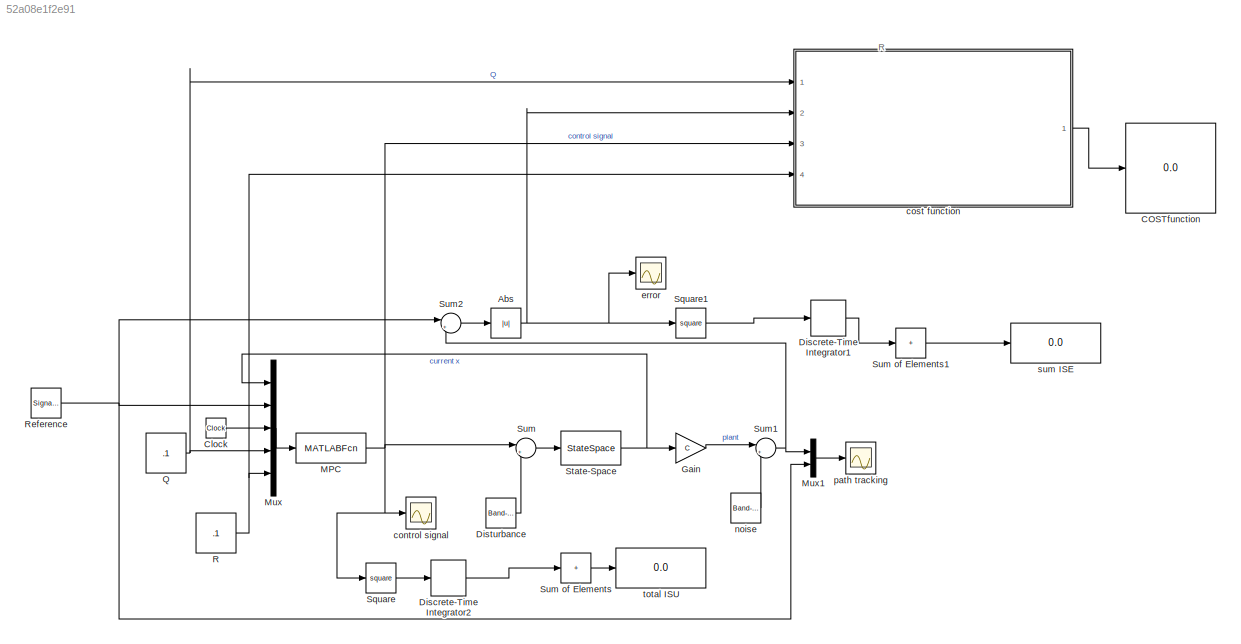
MODEL slx_52a08e1f2e91
KIND model
CONFIG AbsTol = auto
CONFIG EnableMultiTasking = on
CONFIG FixedStep = auto
CONFIG MaxStep = auto
CONFIG MinStep = auto
CONFIG RelTol = 1e-3
CONFIG SampleTimeConstraint = Unconstrained
CONFIG SolverName = ode45
CONFIG StartTime = 0.0
CONFIG StopTime = 10
BLOCK [Abs] Abs
  SaturateOnIntegerOverflow = off
BLOCK [Display] COSTfunction
  Decimation = 1
  Ports = [1]
BLOCK [Clock] Clock
BLOCK [DiscreteIntegrator] Discrete-Time Integrator1
  ICPrevOutput = DiscIntNeverNeededParam
  ICPrevScaledInput = DiscIntNeverNeededParam
  InitialConditionSetting = Auto
  Ports = [1, 1]
  SampleTime = -1
BLOCK [DiscreteIntegrator] Discrete-Time Integrator2
  ICPrevOutput = DiscIntNeverNeededParam
  ICPrevScaledInput = DiscIntNeverNeededParam
  InitialConditionSetting = Auto
  Ports = [1, 1]
  SampleTime = -1
BLOCK [Reference] Disturbance  REF=simulink/Sources/Band-Limited
White Noise
  Ports = [0, 1]
  SourceBlock = simulink/Sources/Band-Limited\nWhite Noise
  SourceProductBaseCode = SL
  SourceType = Band-Limited White Noise.
BLOCK [Gain] Gain
  Gain = C
  Multiplication = Matrix(K*u)
BLOCK [MATLABFcn] MPC
  Description = MPC controller
  MATLABFcn = ac3mpccontroller(u(1:5),u(6),u(7),u(8),u(9))
  Ports = [1, 1]
  SampleTime = Ts
BLOCK [Mux] Mux
  DisplayOption = bar
  Inputs = 5
  Ports = [5, 1]
BLOCK [Mux] Mux1
  DisplayOption = bar
  Inputs = 2
  Ports = [2, 1]
BLOCK [Constant] Q
  SampleTime = -1
  Value = .1
BLOCK [Constant] R
  SampleTime = -1
  Value = .1
BLOCK [SignalGenerator] Reference
  Frequency = .2
  Ports = [0, 1]
  WaveForm = square
BLOCK [Math] Square
  Operator = square
  Ports = [1, 1]
BLOCK [Math] Square1
  Operator = square
  Ports = [1, 1]
BLOCK [StateSpace] State-Space
  A = A
  B = B
  C = eye(nx)
  D = zeros(nx,nu)
  InitialCondition = x0
  Ports = [1, 1]
BLOCK [Sum] Sum
  Inputs = |++
  Ports = [2, 1]
BLOCK [Sum] Sum of Elements
  IconShape = rectangular
  Inputs = +
  Ports = [1, 1]
BLOCK [Sum] Sum of Elements1
  IconShape = rectangular
  Inputs = +
  Ports = [1, 1]
BLOCK [Sum] Sum1
  Inputs = |++
  Ports = [2, 1]
BLOCK [Sum] Sum2
  Inputs = |+-
  Ports = [2, 1]
BLOCK [Scope] control signal
  Floating = off
  NumInputPorts = 1
  Ports = [1]
  ScopeSpecificationString = Simulink.scopes.TimeScopeBlockCfg('CurrentConfiguration', extmgr.ConfigurationSet(extmgr.Configuration('Core','General UI',true),extmgr.Configuration('Core','Source UI',true),extmgr.Configuration('Sources','WiredSimulink',true,'DataLoggingVariableName','ScopeData1','DataLoggingSaveFormat','StructureWithTime','DataLoggingLimitDataPoints',true,'DataLoggingDecimation','1','DataLoggingDecimateData',tr...<+1693ch>
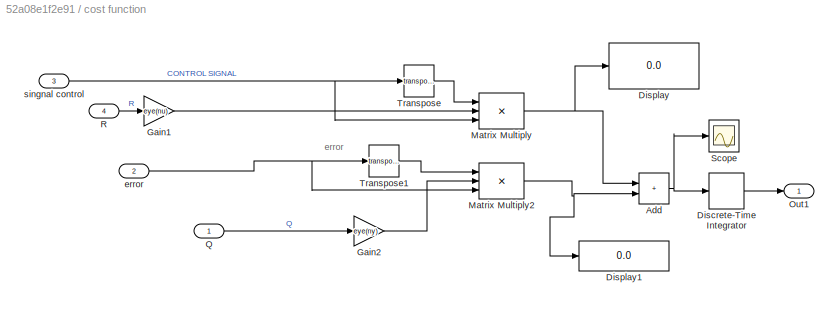
BLOCK [SubSystem] cost function
  Ports = [4, 1]
  RequestExecContextInheritance = off
BLOCK [Sum] cost function/Add
  IconShape = rectangular
  Ports = [2, 1]
BLOCK [DiscreteIntegrator] cost function/Discrete-Time Integrator
  ICPrevOutput = DiscIntNeverNeededParam
  ICPrevScaledInput = DiscIntNeverNeededParam
  InitialConditionSetting = Auto
  Ports = [1, 1]
  SampleTime = -1
BLOCK [Display] cost function/Display
  Decimation = 1
  Ports = [1]
BLOCK [Display] cost function/Display1
  Decimation = 1
  Ports = [1]
BLOCK [Gain] cost function/Gain1
  Gain = eye(nu)
BLOCK [Gain] cost function/Gain2
  Gain = eye(ny)
BLOCK [Product] cost function/Matrix Multiply
  Inputs = 3
  Multiplication = Matrix(*)
  Ports = [3, 1]
BLOCK [Product] cost function/Matrix Multiply2
  Inputs = 3
  Multiplication = Matrix(*)
  Ports = [3, 1]
BLOCK [Outport] cost function/Out1
BLOCK [Inport] cost function/Q
BLOCK [Inport] cost function/R
  Port = 4
BLOCK [Scope] cost function/Scope
  Floating = off
  NumInputPorts = 1
  Ports = [1]
  ScopeSpecificationString = Simulink.scopes.TimeScopeBlockCfg('CurrentConfiguration', extmgr.ConfigurationSet(extmgr.Configuration('Core','General UI',true),extmgr.Configuration('Core','Source UI',true),extmgr.Configuration('Sources','WiredSimulink',true,'DataLoggingVariableName','ScopeData1'),extmgr.Configuration('Visuals','Time Domain',true,'SerializedDisplays',{struct('MinYLimReal','-0.02825','MaxYLimReal','1.93253','YLab...<+1385ch>
BLOCK [Math] cost function/Transpose
  Operator = transpose
  Ports = [1, 1]
BLOCK [Math] cost function/Transpose1
  Operator = transpose
  Ports = [1, 1]
BLOCK [Inport] cost function/error
  Port = 2
BLOCK [Inport] cost function/singnal control
  Port = 3
BLOCK [Scope] error
  Floating = off
  NumInputPorts = 1
  Ports = [1]
  ScopeSpecificationString = Simulink.scopes.TimeScopeBlockCfg('CurrentConfiguration', extmgr.ConfigurationSet(extmgr.Configuration('Core','General UI',true),extmgr.Configuration('Core','Source UI',true),extmgr.Configuration('Sources','WiredSimulink',true,'DataLoggingVariableName','ScopeData1'),extmgr.Configuration('Visuals','Time Domain',true,'SerializedDisplays',{struct('MinYLimReal','-0.33128','MaxYLimReal','2.98149','YLab...<+1397ch>
BLOCK [Reference] noise  REF=simulink/Sources/Band-Limited
White Noise
  Ports = [0, 1]
  SourceBlock = simulink/Sources/Band-Limited\nWhite Noise
  SourceProductBaseCode = SL
  SourceType = Band-Limited White Noise.
BLOCK [Scope] path tracking
  Floating = off
  NumInputPorts = 1
  Ports = [1]
  ScopeSpecificationString = Simulink.scopes.TimeScopeBlockCfg('CurrentConfiguration', extmgr.ConfigurationSet(extmgr.Configuration('Core','General UI',true),extmgr.Configuration('Core','Source UI',true),extmgr.Configuration('Sources','WiredSimulink',true,'DataLoggingVariableName','ScopeData1','DataLoggingSaveFormat','StructureWithTime','DataLoggingLimitDataPoints',true,'DataLoggingDecimation','1','DataLoggingDecimateData',tr...<+1761ch>
BLOCK [Display] sum ISE
  Decimation = 1
  Format = long
  Ports = [1]
BLOCK [Display] total ISU
  Decimation = 1
  Ports = [1]
ANNOTATION (root): R
ANNOTATION cost function: error
NET Abs:1 -> Square1:1, cost function:2, error:1
LINE Clock:1 -> Mux:3
LINE Discrete-Time Integrator1:1 -> Sum of Elements1:1
LINE Discrete-Time Integrator2:1 -> Sum of Elements:1
LINE Disturbance:1 -> Sum:2
LINE Gain:1 -> Sum1:1
NET MPC:1 -> Square:1, Sum:1, control signal:1, cost function:3
LINE Mux1:1 -> path tracking:1
LINE Mux:1 -> MPC:1
NET Q:1 -> Mux:4, cost function:1
NET R:1 -> Mux:5, cost function:4
NET Reference:1 -> Mux1:2, Mux:2, Sum2:1
LINE Square1:1 -> Discrete-Time Integrator1:1
LINE Square:1 -> Discrete-Time Integrator2:1
NET State-Space:1 -> Gain:1, Mux:1
LINE Sum of Elements1:1 -> sum ISE:1
LINE Sum of Elements:1 -> total ISU:1
NET Sum1:1 -> Mux1:1, Sum2:2
LINE Sum2:1 -> Abs:1
LINE Sum:1 -> State-Space:1
NET cost function/Add:1 -> cost function/Discrete-Time Integrator:1, cost function/Scope:1
LINE cost function/Discrete-Time Integrator:1 -> cost function/Out1:1
LINE cost function/Gain1:1 -> cost function/Matrix Multiply:2
LINE cost function/Gain2:1 -> cost function/Matrix Multiply2:2
NET cost function/Matrix Multiply2:1 -> cost function/Add:2, cost function/Display1:1
NET cost function/Matrix Multiply:1 -> cost function/Add:1, cost function/Display:1
LINE cost function/Q:1 -> cost function/Gain2:1
LINE cost function/R:1 -> cost function/Gain1:1
LINE cost function/Transpose1:1 -> cost function/Matrix Multiply2:1
LINE cost function/Transpose:1 -> cost function/Matrix Multiply:1
NET cost function/error:1 -> cost function/Matrix Multiply2:3, cost function/Transpose1:1
NET cost function/singnal control:1 -> cost function/Matrix Multiply:3, cost function/Transpose:1
LINE cost function:1 -> COSTfunction:1
LINE noise:1 -> Sum1:2
note: NET lines group one-source signal fan-out (src -> all destinations, sorted); 1:1 wires keep LINE
